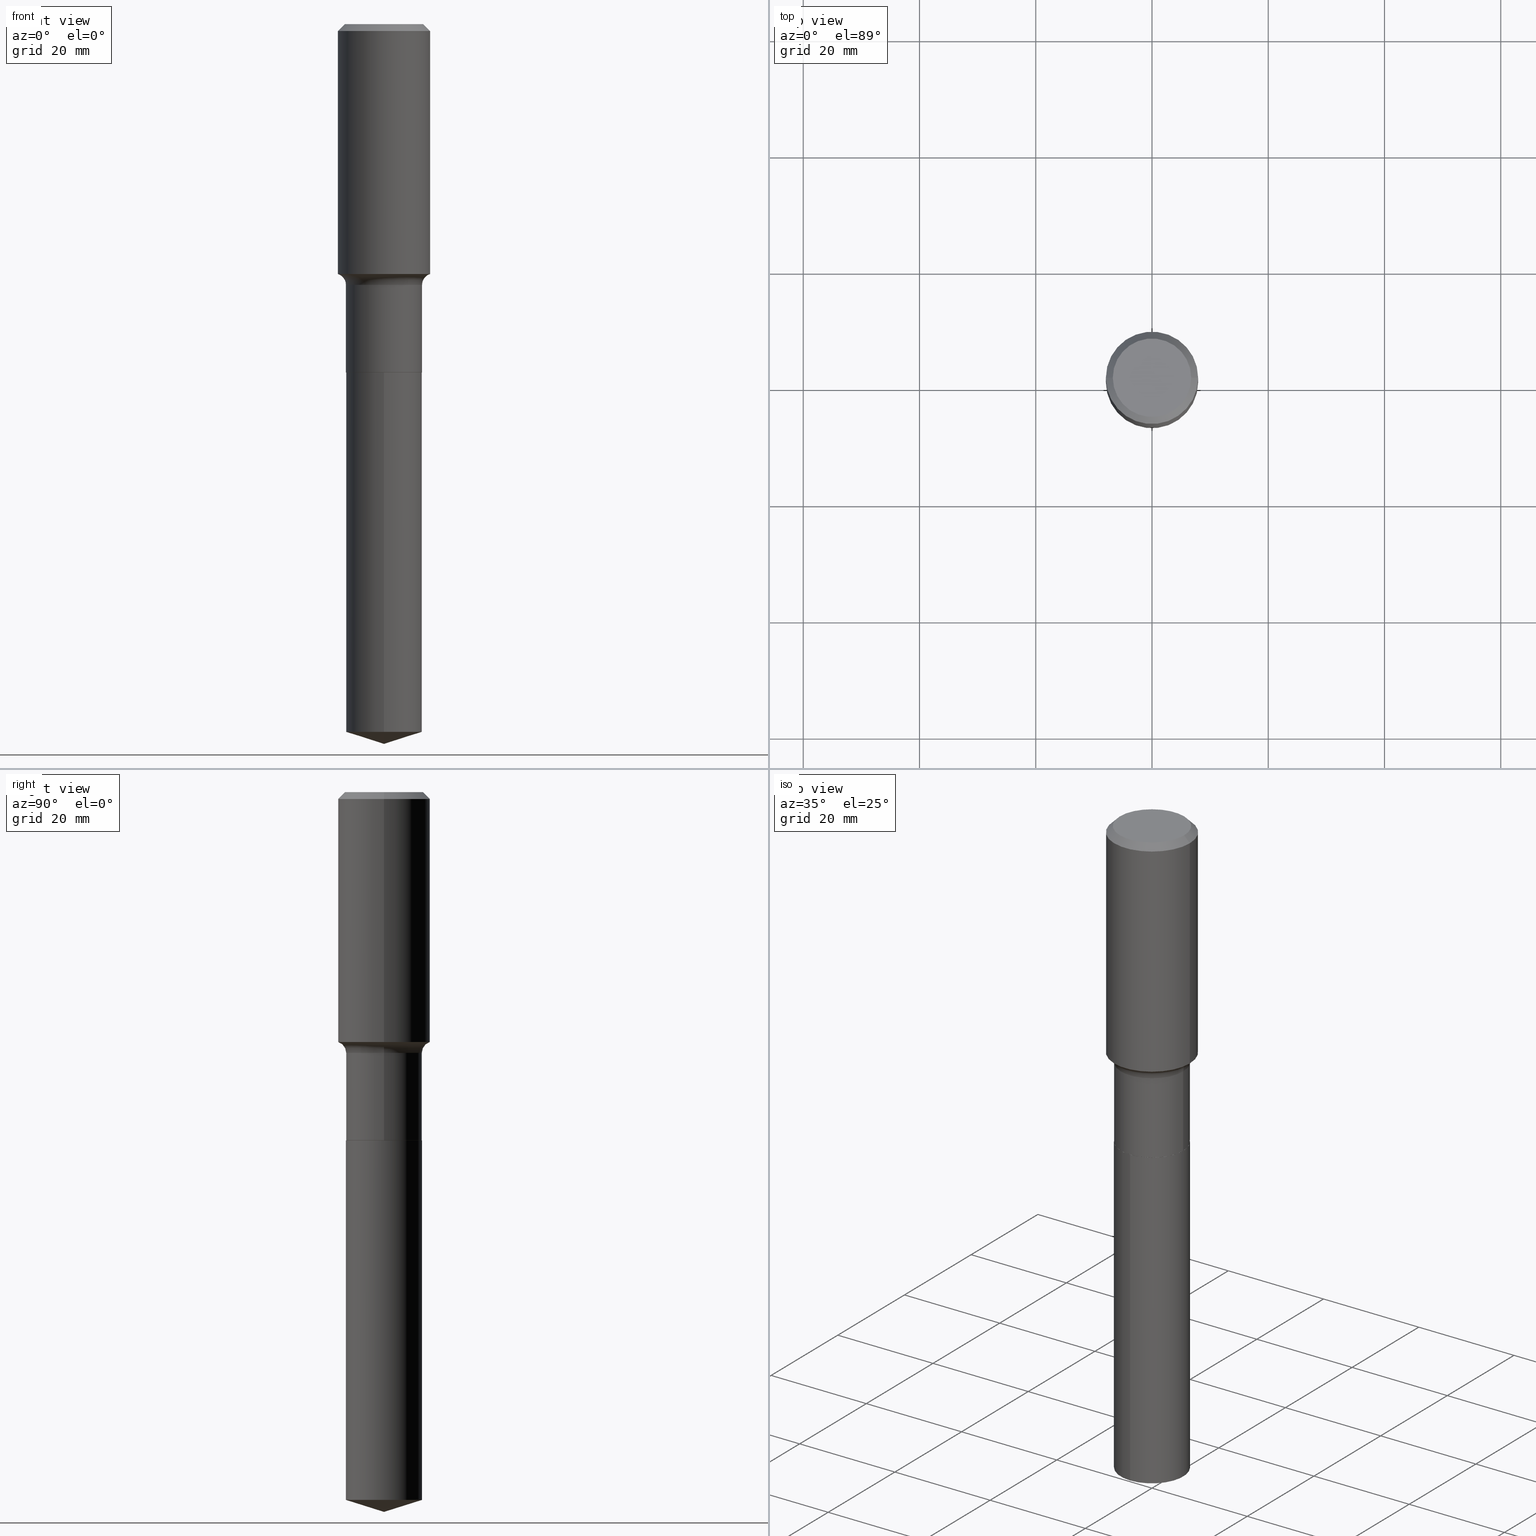
[diagram: canonical four-view strip — front | top / right | iso, engineering-drawing reading convention]
A machine part, canonical four-view strip (front | top / right | iso — engineering-drawing reading convention). The complete STEP part file that produces these views, byte-faithful:
ISO-10303-21;
HEADER;
FILE_DESCRIPTION (( 'STEP AP203' ),
    '1' );
FILE_NAME ('51535.STEP',
    '2024-04-19T12:59:52',
    ( '' ),
    ( '' ),
    'SwSTEP 2.0',
    'SolidWorks 2023',
    '' );
FILE_SCHEMA (( 'CONFIG_CONTROL_DESIGN' ));
ENDSEC;

DATA;
#1 = AXIS2_PLACEMENT_3D ( 'NONE', #195, #346, #59 ) ;
#2 = APPROVAL_ROLE ( '' ) ;
#3 = ORIENTED_EDGE ( 'NONE', *, *, #282, .F. ) ;
#4 = LINE ( 'NONE', #356, #5 ) ;
#5 = VECTOR ( 'NONE', #423, 39.37007874015748143 ) ;
#6 = TOROIDAL_SURFACE ( 'NONE', #295, 0.3357999999999998764, 0.07800000000000002764 ) ;
#7 = DIRECTION ( 'NONE',  ( -2.445468806185136597E-29, 3.491481338843145583E-15, 1.000000000000000000 ) ) ;
#8 = ORIENTED_EDGE ( 'NONE', *, *, #441, .T. ) ;
#9 = LINE ( 'NONE', #250, #444 ) ;
#10 = CARTESIAN_POINT ( 'NONE',  ( 1.831779172789656026E-15, 0.2577999999999917580, -2.359400000000000830 ) ) ;
#11 = CC_DESIGN_DATE_AND_TIME_ASSIGNMENT ( #130, #283, ( #418 ) ) ;
#12 = EDGE_LOOP ( 'NONE', ( #386, #332, #480, #204 ) ) ;
#13 = FACE_OUTER_BOUND ( 'NONE', #105, .T. ) ;
#14 = DIRECTION ( 'NONE',  ( -2.445468806185136597E-29, 3.491481338843145583E-15, 1.000000000000000000 ) ) ;
#15 = PERSON_AND_ORGANIZATION ( #376, #118 ) ;
#16 = ORIENTED_EDGE ( 'NONE', *, *, #263, .T. ) ;
#17 = DIRECTION ( 'NONE',  ( -6.982962677686265133E-15, -1.000000000000000000, 3.500519750498744664E-15 ) ) ;
#18 = VECTOR ( 'NONE', #50, 39.37007874015748143 ) ;
#19 = FACE_OUTER_BOUND ( 'NONE', #361, .T. ) ;
#20 = VERTEX_POINT ( 'NONE', #185 ) ;
#21 = APPLICATION_PROTOCOL_DEFINITION ( 'international standard', 'config_control_design', 1994, #291 ) ;
#22 = CARTESIAN_POINT ( 'NONE',  ( 5.769839101313211634E-29, -8.237801070866517629E-15, -2.359399999999999942 ) ) ;
#23 = ORIENTED_EDGE ( 'NONE', *, *, #406, .F. ) ;
#24 = CARTESIAN_POINT ( 'NONE',  ( 0.000000000000000000, 0.000000000000000000, 0.000000000000000000 ) ) ;
#25 = EDGE_CURVE ( 'NONE', #242, #209, #348, .T. ) ;
#26 = EDGE_LOOP ( 'NONE', ( #440, #138, #172, #382 ) ) ;
#27 = AXIS2_PLACEMENT_3D ( 'NONE', #278, #425, #162 ) ;
#28 = AXIS2_PLACEMENT_3D ( 'NONE', #100, #120, #163 ) ;
#29 = AXIS2_PLACEMENT_3D ( 'NONE', #235, #45, #318 ) ;
#30 = CARTESIAN_POINT ( 'NONE',  ( 0.000000000000000000, 0.000000000000000000, 0.000000000000000000 ) ) ;
#31 = DIRECTION ( 'NONE',  ( -2.445468806185136597E-29, 3.491481338843145583E-15, 1.000000000000000000 ) ) ;
#32 = ADVANCED_FACE ( 'NONE', ( #450 ), #443, .T. ) ;
#33 = CARTESIAN_POINT ( 'NONE',  ( -0.3125000000000002220, -3.687354639751988645E-15, -1.692061367556892515 ) ) ;
#34 = CC_DESIGN_PERSON_AND_ORGANIZATION_ASSIGNMENT ( #246, #385, ( #142 ) ) ;
#35 = CIRCLE ( 'NONE', #1, 0.2577999999999999736 ) ;
#36 = APPROVAL_PERSON_ORGANIZATION ( #123, #68, #165 ) ;
#37 = DIRECTION ( 'NONE',  ( 6.776566513254250249E-15, 0.9537169507482278208, 0.3007057995042703435 ) ) ;
#38 = EDGE_CURVE ( 'NONE', #75, #402, #407, .T. ) ;
#39 = EDGE_CURVE ( 'NONE', #242, #397, #188, .T. ) ;
#40 = DIRECTION ( 'NONE',  ( -2.445468806185136597E-29, 3.491481338843145583E-15, 1.000000000000000000 ) ) ;
#41 = AXIS2_PLACEMENT_3D ( 'NONE', #322, #133, #351 ) ;
#42 = CALENDAR_DATE ( 2024, 19, 4 ) ;
#43 = VERTEX_POINT ( 'NONE', #148 ) ;
#44 = CARTESIAN_POINT ( 'NONE',  ( 1.146313502899290312E-30, -1.636631877582735524E-16, -0.04687500000000031225 ) ) ;
#45 = DIRECTION ( 'NONE',  ( -2.445468806185136597E-29, 3.491481338843145583E-15, 1.000000000000000000 ) ) ;
#46 = CARTESIAN_POINT ( 'NONE',  ( -1.800207778307402021E-15, -0.2578000000000167380, -4.793715972226996413 ) ) ;
#47 = PERSON_AND_ORGANIZATION ( #376, #118 ) ;
#48 = ORIENTED_EDGE ( 'NONE', *, *, #405, .F. ) ;
#49 = AXIS2_PLACEMENT_3D ( 'NONE', #389, #238, #314 ) ;
#50 = DIRECTION ( 'NONE',  ( 0.7071067811865450192, -7.319954787623246579E-15, -0.7071067811865500152 ) ) ;
#51 = APPROVAL ( #366, 'UNSPECIFIED' ) ;
#52 = DIRECTION ( 'NONE',  ( 7.105427357601001859E-15, 1.000000000000000000, -3.491481338843145583E-15 ) ) ;
#53 = ORIENTED_EDGE ( 'NONE', *, *, #329, .F. ) ;
#54 = DIRECTION ( 'NONE',  ( 1.000000000000000000, -6.982962677686255667E-15, 0.000000000000000000 ) ) ;
#55 = DIRECTION ( 'NONE',  ( 0.7071067811866199593, -2.468850131083015945E-15, 0.7071067811864750752 ) ) ;
#56 = APPROVAL_DATE_TIME ( #394, #189 ) ;
#57 = VERTEX_POINT ( 'NONE', #69 ) ;
#58 = DIRECTION ( 'NONE',  ( -6.982962677686266711E-15, -1.000000000000000000, 3.491481338843145583E-15 ) ) ;
#59 = DIRECTION ( 'NONE',  ( -6.982962677686265922E-15, -1.000000000000000000, 3.179031800229941890E-15 ) ) ;
#60 = VERTEX_POINT ( 'NONE', #33 ) ;
#61 = CARTESIAN_POINT ( 'NONE',  ( 1.146313502899290312E-30, -1.636631877582735524E-16, -0.04687500000000031225 ) ) ;
#62 = VECTOR ( 'NONE', #349, 39.37007874015748143 ) ;
#63 = CONICAL_SURFACE ( 'NONE', #225, 0.2572999999999999732, 0.7853981633975507526 ) ;
#64 = CARTESIAN_POINT ( 'NONE',  ( 0.3125000000000000000, -2.345839024535231998E-15, -0.04687500000000031225 ) ) ;
#65 = ORIENTED_EDGE ( 'NONE', *, *, #245, .T. ) ;
#66 = DIRECTION ( 'NONE',  ( -2.445468806185136597E-29, 3.491481338843145583E-15, 1.000000000000000000 ) ) ;
#67 = ORIENTED_EDGE ( 'NONE', *, *, #214, .T. ) ;
#68 = APPROVAL ( #436, 'UNSPECIFIED' ) ;
#69 = CARTESIAN_POINT ( 'NONE',  ( -1.800207778307461580E-15, -0.2578000000000081893, -2.359399999999999054 ) ) ;
#70 = EDGE_CURVE ( 'NONE', #43, #290, #371, .T. ) ;
#71 = CIRCLE ( 'NONE', #154, 0.2577999999999999736 ) ;
#72 =( GEOMETRIC_REPRESENTATION_CONTEXT ( 3 ) GLOBAL_UNCERTAINTY_ASSIGNED_CONTEXT ( ( #342 ) ) GLOBAL_UNIT_ASSIGNED_CONTEXT ( ( #313, #392, #124 ) ) REPRESENTATION_CONTEXT ( 'NONE', 'WORKASPACE' ) );
#73 = CYLINDRICAL_SURFACE ( 'NONE', #191, 0.3125000000000000555 ) ;
#74 = DIRECTION ( 'NONE',  ( -0.7071067811866199593, 7.493145998870616062E-15, 0.7071067811864750752 ) ) ;
#75 = VERTEX_POINT ( 'NONE', #78 ) ;
#76 = AXIS2_PLACEMENT_3D ( 'NONE', #336, #222, #301 ) ;
#77 = AXIS2_PLACEMENT_3D ( 'NONE', #255, #171, #476 ) ;
#78 = CARTESIAN_POINT ( 'NONE',  ( 0.3125000000000002220, -8.089976525779262440E-15, -1.692061367556892515 ) ) ;
#79 = CARTESIAN_POINT ( 'NONE',  ( 1.172252464947418916E-28, -1.673768286122179776E-14, -4.793715972226997302 ) ) ;
#80 = ORIENTED_EDGE ( 'NONE', *, *, #261, .F. ) ;
#81 = EDGE_LOOP ( 'NONE', ( #297, #102, #253, #469 ) ) ;
#82 = APPROVAL_PERSON_ORGANIZATION ( #15, #189, #2 ) ;
#83 = EDGE_LOOP ( 'NONE', ( #96, #477, #317, #257 ) ) ;
#84 = APPROVAL_STATUS ( 'not_yet_approved' ) ;
#85 = EDGE_LOOP ( 'NONE', ( #294, #92, #249, #288 ) ) ;
#86 = ADVANCED_BREP_SHAPE_REPRESENTATION ( '51535', ( #364, #193, #41 ), #72 ) ;
#87 = CARTESIAN_POINT ( 'NONE',  ( 5.768616366910118833E-29, -8.236055330197096914E-15, -2.358900000000000219 ) ) ;
#88 = CARTESIAN_POINT ( 'NONE',  ( 1.172252464947418916E-28, -1.673768286122179776E-14, -4.793715972226997302 ) ) ;
#89 = EDGE_CURVE ( 'NONE', #350, #403, #303, .T. ) ;
#90 = DIRECTION ( 'NONE',  ( 6.982962677686265922E-15, 1.000000000000000000, -3.491692075856237679E-15 ) ) ;
#91 = SHAPE_DEFINITION_REPRESENTATION ( #121, #86 ) ;
#92 = ORIENTED_EDGE ( 'NONE', *, *, #25, .T. ) ;
#93 = AXIS2_PLACEMENT_3D ( 'NONE', #398, #327, #17 ) ;
#94 = PLANE ( 'NONE',  #456 ) ;
#95 = COORDINATED_UNIVERSAL_TIME_OFFSET ( 5, 0, .BEHIND. ) ;
#96 = ORIENTED_EDGE ( 'NONE', *, *, #147, .F. ) ;
#97 = MECHANICAL_CONTEXT ( 'NONE', #194, 'mechanical' ) ;
#98 = DIRECTION ( 'NONE',  ( -2.445468806185136597E-29, 3.491481338843145583E-15, 1.000000000000000000 ) ) ;
#99 = ORIENTED_EDGE ( 'NONE', *, *, #70, .T. ) ;
#100 = CARTESIAN_POINT ( 'NONE',  ( 1.146313502899290312E-30, -1.636631877582735524E-16, -0.04687500000000031225 ) ) ;
#101 = CARTESIAN_POINT ( 'NONE',  ( 5.769839101313211634E-29, -8.237801070866517629E-15, -2.359399999999999942 ) ) ;
#102 = ORIENTED_EDGE ( 'NONE', *, *, #39, .T. ) ;
#103 = CIRCLE ( 'NONE', #377, 0.3125000000000001665 ) ;
#104 = DIRECTION ( 'NONE',  ( 1.000000000000000000, -6.982962677686265922E-15, 4.883557194083112340E-29 ) ) ;
#105 = EDGE_LOOP ( 'NONE', ( #127, #358, #284 ) ) ;
#106 = CARTESIAN_POINT ( 'NONE',  ( -0.2572999999999999732, -6.409574611755779252E-15, -2.359399999999999942 ) ) ;
#107 = DIRECTION ( 'NONE',  ( 1.000000000000000000, -6.982962677686265922E-15, 4.883557194083112340E-29 ) ) ;
#108 = TOROIDAL_SURFACE ( 'NONE', #449, 0.3357999999999998764, 0.07800000000000002764 ) ;
#109 = CIRCLE ( 'NONE', #77, 0.2577999999999999736 ) ;
#110 = DIRECTION ( 'NONE',  ( -6.982962677686265133E-15, -1.000000000000000000, 3.500519750498744664E-15 ) ) ;
#111 = FACE_OUTER_BOUND ( 'NONE', #247, .T. ) ;
#112 = DIRECTION ( 'NONE',  ( -2.445321649315413865E-29, 3.491692075856237679E-15, 1.000000000000000000 ) ) ;
#113 = AXIS2_PLACEMENT_3D ( 'NONE', #24, #137, #331 ) ;
#114 = CARTESIAN_POINT ( 'NONE',  ( 0.2577999999999999181, -7.967909563373935033E-15, -1.766499999999999959 ) ) ;
#115 = ADVANCED_FACE ( 'NONE', ( #492 ), #150, .T. ) ;
#116 = ORIENTED_EDGE ( 'NONE', *, *, #245, .F. ) ;
#117 = CIRCLE ( 'NONE', #400, 0.07800000000000002764 ) ;
#118 = ORGANIZATION ( 'UNSPECIFIED', 'UNSPECIFIED', '' ) ;
#119 = COORDINATED_UNIVERSAL_TIME_OFFSET ( 5, 0, .BEHIND. ) ;
#120 = DIRECTION ( 'NONE',  ( -2.445468806185136597E-29, 3.491481338843145583E-15, 1.000000000000000000 ) ) ;
#121 = PRODUCT_DEFINITION_SHAPE ( 'NONE', 'NONE',  #418 ) ;
#122 = DIRECTION ( 'NONE',  ( 1.000000000000000000, -6.982962677686266711E-15, 0.000000000000000000 ) ) ;
#123 = PERSON_AND_ORGANIZATION ( #376, #118 ) ;
#124 =( NAMED_UNIT ( * ) SI_UNIT ( $, .STERADIAN. ) SOLID_ANGLE_UNIT ( ) );
#125 = ADVANCED_FACE ( 'NONE', ( #486 ), #414, .T. ) ;
#126 = CARTESIAN_POINT ( 'NONE',  ( 4.137883292511343296E-29, -5.907800689002302515E-15, -1.692061367556892515 ) ) ;
#127 = ORIENTED_EDGE ( 'NONE', *, *, #89, .F. ) ;
#128 = FACE_OUTER_BOUND ( 'NONE', #158, .T. ) ;
#129 = DIRECTION ( 'NONE',  ( 2.438088387897960049E-29, -3.491481338843145188E-15, -1.000000000000000000 ) ) ;
#130 = DATE_AND_TIME ( #42, #324 ) ;
#131 = ORIENTED_EDGE ( 'NONE', *, *, #445, .T. ) ;
#132 = AXIS2_PLACEMENT_3D ( 'NONE', #87, #243, #462 ) ;
#133 = DIRECTION ( 'NONE',  ( 0.000000000000000000, 0.000000000000000000, 1.000000000000000000 ) ) ;
#134 = DIRECTION ( 'NONE',  ( -6.982962677686265922E-15, -1.000000000000000000, 4.238709066973255853E-15 ) ) ;
#135 = DATE_AND_TIME ( #426, #463 ) ;
#136 = ORIENTED_EDGE ( 'NONE', *, *, #405, .T. ) ;
#137 = DIRECTION ( 'NONE',  ( -2.445468806185136597E-29, 3.491481338843145583E-15, 1.000000000000000000 ) ) ;
#138 = ORIENTED_EDGE ( 'NONE', *, *, #227, .T. ) ;
#139 = CARTESIAN_POINT ( 'NONE',  ( -1.800207778307461580E-15, -0.2578000000000081893, -2.359399999999999054 ) ) ;
#140 = ORIENTED_EDGE ( 'NONE', *, *, #344, .F. ) ;
#141 = CLOSED_SHELL ( 'NONE', ( #160, #32, #481, #125, #279 ) ) ;
#142 = PRODUCT_DEFINITION_FORMATION_WITH_SPECIFIED_SOURCE ( 'ANY', '', #272, .NOT_KNOWN. ) ;
#143 = DIRECTION ( 'NONE',  ( -2.445321649315413865E-29, 3.491692075856237679E-15, 1.000000000000000000 ) ) ;
#144 = CC_DESIGN_PERSON_AND_ORGANIZATION_ASSIGNMENT ( #475, #211, ( #272 ) ) ;
#145 = ORIENTED_EDGE ( 'NONE', *, *, #344, .T. ) ;
#146 = ADVANCED_FACE ( 'NONE', ( #111 ), #226, .T. ) ;
#147 = EDGE_CURVE ( 'NONE', #60, #176, #264, .T. ) ;
#148 = CARTESIAN_POINT ( 'NONE',  ( 0.2577999999999999736, -1.003626310850461608E-14, -2.358900000000000219 ) ) ;
#149 = DIRECTION ( 'NONE',  ( -2.445468806185136877E-29, 3.491481338843145188E-15, 1.000000000000000000 ) ) ;
#150 = CYLINDRICAL_SURFACE ( 'NONE', #208, 0.2577999999999999181 ) ;
#151 = CARTESIAN_POINT ( 'NONE',  ( 0.000000000000000000, 0.000000000000000000, 0.000000000000000000 ) ) ;
#152 = ADVANCED_FACE ( 'NONE', ( #343 ), #108, .F. ) ;
#153 = CARTESIAN_POINT ( 'NONE',  ( -1.591006383764330162E-46, 2.271535455632767854E-32, 6.505936120470315685E-18 ) ) ;
#154 = AXIS2_PLACEMENT_3D ( 'NONE', #88, #236, #198 ) ;
#155 = AXIS2_PLACEMENT_3D ( 'NONE', #22, #66, #289 ) ;
#156 = ADVANCED_FACE ( 'NONE', ( #369 ), #73, .T. ) ;
#157 = CALENDAR_DATE ( 2024, 19, 4 ) ;
#158 = EDGE_LOOP ( 'NONE', ( #80, #338, #8, #180 ) ) ;
#159 = CARTESIAN_POINT ( 'NONE',  ( 4.137883292511343296E-29, -5.907800689002302515E-15, -1.692061367556892515 ) ) ;
#160 = ADVANCED_FACE ( 'NONE', ( #182 ), #448, .T. ) ;
#161 = LENGTH_MEASURE_WITH_UNIT ( LENGTH_MEASURE( 0.02539999999999999897 ), #347 );
#162 = DIRECTION ( 'NONE',  ( -1.000000000000000000, 6.982962677686266711E-15, 0.000000000000000000 ) ) ;
#163 = DIRECTION ( 'NONE',  ( 1.000000000000000000, -6.982962677686266711E-15, 0.000000000000000000 ) ) ;
#164 = DIRECTION ( 'NONE',  ( -1.000000000000000000, 7.105427357601001859E-15, 0.000000000000000000 ) ) ;
#165 = APPROVAL_ROLE ( '' ) ;
#166 = ORIENTED_EDGE ( 'NONE', *, *, #70, .F. ) ;
#167 = DIRECTION ( 'NONE',  ( -6.659769872151624989E-15, -0.9537169507482257114, 0.3007057995042770049 ) ) ;
#168 = DIRECTION ( 'NONE',  ( 1.000000000000000000, -6.982962677686265922E-15, 0.000000000000000000 ) ) ;
#169 = PERSON_AND_ORGANIZATION ( #376, #118 ) ;
#170 = ORIENTED_EDGE ( 'NONE', *, *, #457, .F. ) ;
#171 = DIRECTION ( 'NONE',  ( -2.445468806185136597E-29, 3.491481338843145583E-15, 1.000000000000000000 ) ) ;
#172 = ORIENTED_EDGE ( 'NONE', *, *, #406, .T. ) ;
#173 = PERSON_AND_ORGANIZATION ( #376, #118 ) ;
#174 = PRODUCT_RELATED_PRODUCT_CATEGORY ( 'detail', '', ( #272 ) ) ;
#175 = CARTESIAN_POINT ( 'NONE',  ( 1.831779172789655238E-15, 0.2577999999999832648, -4.793715972226999078 ) ) ;
#176 = VERTEX_POINT ( 'NONE', #299 ) ;
#177 = DATE_AND_TIME ( #372, #345 ) ;
#178 = EDGE_CURVE ( 'NONE', #403, #234, #4, .T. ) ;
#179 = DIRECTION ( 'NONE',  ( -2.445468806185136597E-29, 3.491481338843145583E-15, 1.000000000000000000 ) ) ;
#180 = ORIENTED_EDGE ( 'NONE', *, *, #459, .F. ) ;
#181 = AXIS2_PLACEMENT_3D ( 'NONE', #200, #274, #122 ) ;
#182 = FACE_OUTER_BOUND ( 'NONE', #437, .T. ) ;
#183 = DIRECTION ( 'NONE',  ( -6.982962677686265922E-15, -1.000000000000000000, 3.179031800229941890E-15 ) ) ;
#184 = EDGE_CURVE ( 'NONE', #60, #75, #470, .T. ) ;
#185 = CARTESIAN_POINT ( 'NONE',  ( -0.2577999999999999181, -5.370099384842219482E-15, -1.766499999999999959 ) ) ;
#186 = VECTOR ( 'NONE', #55, 39.37007874015748143 ) ;
#187 = DIRECTION ( 'NONE',  ( -2.445321649315413865E-29, 3.491692075856237679E-15, 1.000000000000000000 ) ) ;
#188 = LINE ( 'NONE', #106, #300 ) ;
#189 = APPROVAL ( #84, 'UNSPECIFIED' ) ;
#190 = ADVANCED_FACE ( 'NONE', ( #471 ), #454, .T. ) ;
#191 = AXIS2_PLACEMENT_3D ( 'NONE', #30, #40, #337 ) ;
#192 = CC_DESIGN_SECURITY_CLASSIFICATION ( #420, ( #142 ) ) ;
#193 = MANIFOLD_SOLID_BREP ( 'Body-Move/Copy2[2]', #305 ) ;
#194 = APPLICATION_CONTEXT ( 'configuration controlled 3d designs of mechanical parts and assemblies' ) ;
#195 = CARTESIAN_POINT ( 'NONE',  ( 5.769839101313211634E-29, -8.237801070866517629E-15, -2.359399999999999942 ) ) ;
#196 = PERSON_AND_ORGANIZATION_ROLE ( 'design_supplier' ) ;
#197 = CARTESIAN_POINT ( 'NONE',  ( -0.3125000000000000000, 2.018512649018685091E-15, -0.04687500000000031225 ) ) ;
#198 = DIRECTION ( 'NONE',  ( -6.982962677686265922E-15, -1.000000000000000000, 4.238709066973255853E-15 ) ) ;
#199 = AXIS2_PLACEMENT_3D ( 'NONE', #399, #58, #54 ) ;
#200 = CARTESIAN_POINT ( 'NONE',  ( 5.769839101313211634E-29, -8.237801070866517629E-15, -2.359399999999999942 ) ) ;
#201 = EDGE_LOOP ( 'NONE', ( #131, #67, #170, #166 ) ) ;
#202 = CARTESIAN_POINT ( 'NONE',  ( 4.319920646126043085E-29, -6.167701785066416655E-15, -1.766499999999999959 ) ) ;
#203 = COORDINATED_UNIVERSAL_TIME_OFFSET ( 5, 0, .BEHIND. ) ;
#204 = ORIENTED_EDGE ( 'NONE', *, *, #38, .F. ) ;
#205 = LINE ( 'NONE', #387, #18 ) ;
#206 = ADVANCED_FACE ( 'NONE', ( #352 ), #483, .T. ) ;
#207 = CARTESIAN_POINT ( 'NONE',  ( -0.2656250000000000000, 1.936681055139549843E-15, 6.505936120457058354E-18 ) ) ;
#208 = AXIS2_PLACEMENT_3D ( 'NONE', #341, #490, #221 ) ;
#209 = VERTEX_POINT ( 'NONE', #244 ) ;
#210 = CIRCLE ( 'NONE', #28, 0.3125000000000000000 ) ;
#211 = PERSON_AND_ORGANIZATION_ROLE ( 'design_owner' ) ;
#212 = CARTESIAN_POINT ( 'NONE',  ( -0.2578000000000000291, -5.370099384842219482E-15, -2.358900000000000219 ) ) ;
#213 = EDGE_LOOP ( 'NONE', ( #474, #391 ) ) ;
#214 = EDGE_CURVE ( 'NONE', #397, #20, #431, .T. ) ;
#215 = APPROVAL_ROLE ( '' ) ;
#216 = CARTESIAN_POINT ( 'NONE',  ( -1.591006383764330162E-46, 2.271535455632767854E-32, 6.505936120470315685E-18 ) ) ;
#217 = VERTEX_POINT ( 'NONE', #46 ) ;
#218 = DIRECTION ( 'NONE',  ( -6.982962677686265922E-15, -1.000000000000000000, 3.179031800229941890E-15 ) ) ;
#219 = AXIS2_PLACEMENT_3D ( 'NONE', #44, #98, #396 ) ;
#220 = VECTOR ( 'NONE', #422, 39.37007874015748143 ) ;
#221 = DIRECTION ( 'NONE',  ( 1.000000000000000000, -6.982962677686267499E-15, 4.876176775795936353E-29 ) ) ;
#222 = DIRECTION ( 'NONE',  ( -2.445468806185136597E-29, 3.491481338843145583E-15, 1.000000000000000000 ) ) ;
#223 = CARTESIAN_POINT ( 'NONE',  ( 5.769839101313211634E-29, -8.237801070866517629E-15, -2.359399999999999942 ) ) ;
#224 = CIRCLE ( 'NONE', #259, 0.2577999999999999736 ) ;
#225 = AXIS2_PLACEMENT_3D ( 'NONE', #101, #328, #478 ) ;
#226 = CYLINDRICAL_SURFACE ( 'NONE', #415, 0.2577999999999999181 ) ;
#227 = EDGE_CURVE ( 'NONE', #403, #217, #71, .T. ) ;
#228 = CARTESIAN_POINT ( 'NONE',  ( -0.2572999999999999732, -6.406925384581668051E-15, -2.359399999999999942 ) ) ;
#229 = VERTEX_POINT ( 'NONE', #434 ) ;
#230 = AXIS2_PLACEMENT_3D ( 'NONE', #258, #410, #183 ) ;
#231 = CIRCLE ( 'NONE', #266, 0.2656250000000000000 ) ;
#232 = ORIENTED_EDGE ( 'NONE', *, *, #261, .T. ) ;
#233 = APPROVAL_DATE_TIME ( #316, #68 ) ;
#234 = VERTEX_POINT ( 'NONE', #10 ) ;
#235 = CARTESIAN_POINT ( 'NONE',  ( 4.319920646126043085E-29, -6.167701785066416655E-15, -1.766499999999999959 ) ) ;
#236 = DIRECTION ( 'NONE',  ( -2.445321649315413865E-29, 3.491692075856237679E-15, 1.000000000000000000 ) ) ;
#237 = ORIENTED_EDGE ( 'NONE', *, *, #329, .T. ) ;
#238 = DIRECTION ( 'NONE',  ( -2.445321649315413865E-29, 3.491692075856237679E-15, 1.000000000000000000 ) ) ;
#239 = CIRCLE ( 'NONE', #219, 0.3125000000000000000 ) ;
#240 = CIRCLE ( 'NONE', #199, 0.07800000000000002764 ) ;
#241 = CC_DESIGN_APPROVAL ( #68, ( #420 ) ) ;
#242 = VERTEX_POINT ( 'NONE', #228 ) ;
#243 = DIRECTION ( 'NONE',  ( -2.445468806185136597E-29, 3.491481338843145583E-15, 1.000000000000000000 ) ) ;
#244 = CARTESIAN_POINT ( 'NONE',  ( 0.2572999999999999732, -1.003451736783519379E-14, -2.359399999999999942 ) ) ;
#245 = EDGE_CURVE ( 'NONE', #217, #403, #224, .T. ) ;
#246 = PERSON_AND_ORGANIZATION ( #376, #118 ) ;
#247 = EDGE_LOOP ( 'NONE', ( #484, #427, #99, #53 ) ) ;
#248 = CARTESIAN_POINT ( 'NONE',  ( -0.3357999999999998764, -3.781699278384001110E-15, -1.766499999999999959 ) ) ;
#249 = ORIENTED_EDGE ( 'NONE', *, *, #315, .T. ) ;
#250 = CARTESIAN_POINT ( 'NONE',  ( 1.192094304041264091E-28, -1.702199886979915711E-14, -4.875000000000000000 ) ) ;
#251 = CARTESIAN_POINT ( 'NONE',  ( 4.319920646126043085E-29, -6.167701785066416655E-15, -1.766499999999999959 ) ) ;
#252 = AXIS2_PLACEMENT_3D ( 'NONE', #202, #14, #168 ) ;
#253 = ORIENTED_EDGE ( 'NONE', *, *, #445, .F. ) ;
#254 = CC_DESIGN_APPROVAL ( #51, ( #418 ) ) ;
#255 = CARTESIAN_POINT ( 'NONE',  ( 5.768616366910118833E-29, -8.236055330197096914E-15, -2.358900000000000219 ) ) ;
#256 = ORIENTED_EDGE ( 'NONE', *, *, #479, .F. ) ;
#257 = ORIENTED_EDGE ( 'NONE', *, *, #335, .F. ) ;
#258 = CARTESIAN_POINT ( 'NONE',  ( 5.769839101313211634E-29, -8.237801070866517629E-15, -2.359399999999999942 ) ) ;
#259 = AXIS2_PLACEMENT_3D ( 'NONE', #79, #267, #134 ) ;
#260 = DIRECTION ( 'NONE',  ( -2.445468806185136877E-29, 3.491481338843145188E-15, 1.000000000000000000 ) ) ;
#261 = EDGE_CURVE ( 'NONE', #229, #326, #339, .T. ) ;
#262 = DIRECTION ( 'NONE',  ( 1.000000000000000000, -6.982962677686267499E-15, 4.876176775795936353E-29 ) ) ;
#263 = EDGE_CURVE ( 'NONE', #234, #57, #265, .T. ) ;
#264 = LINE ( 'NONE', #378, #269 ) ;
#265 = CIRCLE ( 'NONE', #49, 0.2577999999999999736 ) ;
#266 = AXIS2_PLACEMENT_3D ( 'NONE', #216, #179, #482 ) ;
#267 = DIRECTION ( 'NONE',  ( -2.445321649315413865E-29, 3.491692075856237679E-15, 1.000000000000000000 ) ) ;
#268 = ORIENTED_EDGE ( 'NONE', *, *, #282, .T. ) ;
#269 = VECTOR ( 'NONE', #149, 39.37007874015748143 ) ;
#270 = CONICAL_SURFACE ( 'NONE', #306, 0.3125000000000000000, 0.7853981633974447263 ) ;
#271 = CALENDAR_DATE ( 2024, 19, 4 ) ;
#272 = PRODUCT ( '51535', '51535', '', ( #97 ) ) ;
#273 = DIRECTION ( 'NONE',  ( 2.445468806185136597E-29, -3.491481338843145583E-15, -1.000000000000000000 ) ) ;
#274 = DIRECTION ( 'NONE',  ( -2.445468806185136597E-29, 3.491481338843145583E-15, 1.000000000000000000 ) ) ;
#275 = CC_DESIGN_DATE_AND_TIME_ASSIGNMENT ( #135, #287, ( #420 ) ) ;
#276 = CARTESIAN_POINT ( 'NONE',  ( 5.769839101313211634E-29, -8.237801070866517629E-15, -2.359399999999999942 ) ) ;
#277 = DIRECTION ( 'NONE',  ( -1.000000000000000000, 6.982962677686266711E-15, 0.000000000000000000 ) ) ;
#278 = CARTESIAN_POINT ( 'NONE',  ( 1.146313502899290312E-30, -1.636631877582735524E-16, -0.04687500000000031225 ) ) ;
#279 = ADVANCED_FACE ( 'NONE', ( #465 ), #94, .F. ) ;
#280 = CIRCLE ( 'NONE', #155, 0.2572999999999999732 ) ;
#281 = LOCAL_TIME ( 8, 59, 52.00000000000000000, #203 ) ;
#282 = EDGE_CURVE ( 'NONE', #60, #20, #117, .T. ) ;
#283 = DATE_TIME_ROLE ( 'creation_date' ) ;
#284 = ORIENTED_EDGE ( 'NONE', *, *, #227, .F. ) ;
#285 = LINE ( 'NONE', #197, #220 ) ;
#286 = LINE ( 'NONE', #417, #186 ) ;
#287 = DATE_TIME_ROLE ( 'classification_date' ) ;
#288 = ORIENTED_EDGE ( 'NONE', *, *, #424, .F. ) ;
#289 = DIRECTION ( 'NONE',  ( 1.000000000000000000, -6.982962677686266711E-15, 0.000000000000000000 ) ) ;
#290 = VERTEX_POINT ( 'NONE', #114 ) ;
#291 = APPLICATION_CONTEXT ( 'configuration controlled 3d designs of mechanical parts and assemblies' ) ;
#292 = DIRECTION ( 'NONE',  ( 1.000000000000000000, -6.982962677686265133E-15, 0.000000000000000000 ) ) ;
#293 = AXIS2_PLACEMENT_3D ( 'NONE', #467, #129, #380 ) ;
#294 = ORIENTED_EDGE ( 'NONE', *, *, #39, .F. ) ;
#295 = AXIS2_PLACEMENT_3D ( 'NONE', #251, #442, #104 ) ;
#296 = DIMENSIONAL_EXPONENTS ( 1.000000000000000000, 0.000000000000000000, 0.000000000000000000, 0.000000000000000000, 0.000000000000000000, 0.000000000000000000, 0.000000000000000000 ) ;
#297 = ORIENTED_EDGE ( 'NONE', *, *, #374, .T. ) ;
#298 = ORIENTED_EDGE ( 'NONE', *, *, #472, .F. ) ;
#299 = CARTESIAN_POINT ( 'NONE',  ( -0.3125000000000000000, -8.152858891299743119E-16, -0.04687500000000031225 ) ) ;
#300 = VECTOR ( 'NONE', #74, 39.37007874015748143 ) ;
#301 = DIRECTION ( 'NONE',  ( 1.000000000000000000, -6.982962677686266711E-15, 0.000000000000000000 ) ) ;
#302 = ADVANCED_FACE ( 'NONE', ( #464 ), #319, .F. ) ;
#303 = LINE ( 'NONE', #447, #408 ) ;
#304 = DIRECTION ( 'NONE',  ( 1.000000000000000000, -6.982962677686268288E-15, 4.876286914311434227E-29 ) ) ;
#305 = CLOSED_SHELL ( 'NONE', ( #190, #491, #156, #412, #115, #146, #152, #381, #206, #302, #468, #404 ) ) ;
#306 = AXIS2_PLACEMENT_3D ( 'NONE', #61, #273, #277 ) ;
#307 = EDGE_LOOP ( 'NONE', ( #256, #310, #116 ) ) ;
#308 = DESIGN_CONTEXT ( 'detailed design', #291, 'design' ) ;
#309 = PERSON_AND_ORGANIZATION ( #376, #118 ) ;
#310 = ORIENTED_EDGE ( 'NONE', *, *, #89, .T. ) ;
#311 = VECTOR ( 'NONE', #260, 39.37007874015748143 ) ;
#312 = DIRECTION ( 'NONE',  ( -2.445468806185136597E-29, 3.491481338843145583E-15, 1.000000000000000000 ) ) ;
#313 =( CONVERSION_BASED_UNIT ( 'INCH', #161 ) LENGTH_UNIT ( ) NAMED_UNIT ( #296 ) );
#314 = DIRECTION ( 'NONE',  ( -6.982962677686265922E-15, -1.000000000000000000, 3.179031800229941890E-15 ) ) ;
#315 = EDGE_CURVE ( 'NONE', #209, #43, #286, .T. ) ;
#316 = DATE_AND_TIME ( #271, #409 ) ;
#317 = ORIENTED_EDGE ( 'NONE', *, *, #38, .T. ) ;
#318 = DIRECTION ( 'NONE',  ( 1.000000000000000000, -6.982962677686265922E-15, 0.000000000000000000 ) ) ;
#319 = PLANE ( 'NONE',  #293 ) ;
#320 = PERSON_AND_ORGANIZATION_ROLE ( 'creator' ) ;
#321 = EDGE_LOOP ( 'NONE', ( #145, #16 ) ) ;
#322 = CARTESIAN_POINT ( 'NONE',  ( 0.000000000000000000, 0.000000000000000000, 0.000000000000000000 ) ) ;
#323 = DIRECTION ( 'NONE',  ( -2.445468806185136597E-29, 3.491481338843145583E-15, 1.000000000000000000 ) ) ;
#324 = LOCAL_TIME ( 8, 59, 52.00000000000000000, #95 ) ;
#325 = SECURITY_CLASSIFICATION_LEVEL ( 'unclassified' ) ;
#326 = VERTEX_POINT ( 'NONE', #207 ) ;
#327 = DIRECTION ( 'NONE',  ( -2.445321649315413865E-29, 3.491692075856237679E-15, 1.000000000000000000 ) ) ;
#328 = DIRECTION ( 'NONE',  ( -2.445468806185136597E-29, 3.491481338843145583E-15, 1.000000000000000000 ) ) ;
#329 = EDGE_CURVE ( 'NONE', #20, #290, #461, .T. ) ;
#330 = ORIENTED_EDGE ( 'NONE', *, *, #178, .T. ) ;
#331 = DIRECTION ( 'NONE',  ( 1.000000000000000000, -6.982962677686266711E-15, 4.876176775795936353E-29 ) ) ;
#332 = ORIENTED_EDGE ( 'NONE', *, *, #147, .T. ) ;
#333 = LINE ( 'NONE', #139, #340 ) ;
#334 = ORIENTED_EDGE ( 'NONE', *, *, #435, .T. ) ;
#335 = EDGE_CURVE ( 'NONE', #176, #402, #239, .T. ) ;
#336 = CARTESIAN_POINT ( 'NONE',  ( 5.769839101313211634E-29, -8.237801070866517629E-15, -2.359399999999999942 ) ) ;
#337 = DIRECTION ( 'NONE',  ( 1.000000000000000000, -6.982962677686266711E-15, 4.876176775795936353E-29 ) ) ;
#338 = ORIENTED_EDGE ( 'NONE', *, *, #472, .T. ) ;
#339 = CIRCLE ( 'NONE', #429, 0.2656250000000000000 ) ;
#340 = VECTOR ( 'NONE', #143, 39.37007874015748143 ) ;
#341 = CARTESIAN_POINT ( 'NONE',  ( 0.000000000000000000, 0.000000000000000000, 0.000000000000000000 ) ) ;
#342 = UNCERTAINTY_MEASURE_WITH_UNIT (LENGTH_MEASURE( 1.000000000000000082E-05 ), #313, 'distance_accuracy_value', 'NONE');
#343 = FACE_OUTER_BOUND ( 'NONE', #419, .T. ) ;
#344 = EDGE_CURVE ( 'NONE', #57, #234, #35, .T. ) ;
#345 = LOCAL_TIME ( 8, 59, 52.00000000000000000, #362 ) ;
#346 = DIRECTION ( 'NONE',  ( -2.445321649315413865E-29, 3.491692075856237679E-15, 1.000000000000000000 ) ) ;
#347 =( LENGTH_UNIT ( ) NAMED_UNIT ( * ) SI_UNIT ( $, .METRE. ) );
#348 = CIRCLE ( 'NONE', #76, 0.2572999999999999732 ) ;
#349 = DIRECTION ( 'NONE',  ( -2.445468806185136877E-29, 3.491481338843145188E-15, 1.000000000000000000 ) ) ;
#350 = VERTEX_POINT ( 'NONE', #455 ) ;
#351 = DIRECTION ( 'NONE',  ( 1.000000000000000000, 0.000000000000000000, 0.000000000000000000 ) ) ;
#352 = FACE_OUTER_BOUND ( 'NONE', #365, .T. ) ;
#353 = ORIENTED_EDGE ( 'NONE', *, *, #457, .T. ) ;
#354 = CARTESIAN_POINT ( 'NONE',  ( -0.2577999999999999181, 1.831779172789537697E-15, -1.268101466267714406E-29 ) ) ;
#355 = ORIENTED_EDGE ( 'NONE', *, *, #184, .F. ) ;
#356 = CARTESIAN_POINT ( 'NONE',  ( 1.831779172789595679E-15, 0.2577999999999917580, -2.359400000000000830 ) ) ;
#357 = CIRCLE ( 'NONE', #132, 0.2577999999999999736 ) ;
#358 = ORIENTED_EDGE ( 'NONE', *, *, #479, .T. ) ;
#359 = DIRECTION ( 'NONE',  ( 1.000000000000000000, -6.982962677686265922E-15, 4.876176775795935793E-29 ) ) ;
#360 = CYLINDRICAL_SURFACE ( 'NONE', #113, 0.3125000000000000555 ) ;
#361 = EDGE_LOOP ( 'NONE', ( #355, #268, #237, #432 ) ) ;
#362 = COORDINATED_UNIVERSAL_TIME_OFFSET ( 5, 0, .BEHIND. ) ;
#363 = FACE_OUTER_BOUND ( 'NONE', #83, .T. ) ;
#364 = MANIFOLD_SOLID_BREP ( 'Body-Move/Copy2[1]', #141 ) ;
#365 = EDGE_LOOP ( 'NONE', ( #298, #48, #458, #446 ) ) ;
#366 = APPROVAL_STATUS ( 'not_yet_approved' ) ;
#367 = AXIS2_PLACEMENT_3D ( 'NONE', #223, #112, #218 ) ;
#368 = CIRCLE ( 'NONE', #29, 0.2577999999999999181 ) ;
#369 = FACE_OUTER_BOUND ( 'NONE', #12, .T. ) ;
#370 = EDGE_CURVE ( 'NONE', #75, #60, #103, .T. ) ;
#371 = LINE ( 'NONE', #452, #311 ) ;
#372 = CALENDAR_DATE ( 2024, 19, 4 ) ;
#373 = CARTESIAN_POINT ( 'NONE',  ( 0.3125000000000000555, -2.182175836776958741E-15, 1.523805242436230356E-29 ) ) ;
#374 = EDGE_CURVE ( 'NONE', #209, #242, #280, .T. ) ;
#375 = CARTESIAN_POINT ( 'NONE',  ( -8.435121563622853842E-28, 1.204466903059535395E-13, 34.49507874015748143 ) ) ;
#376 = PERSON ( 'UNSPECIFIED', 'UNSPECIFIED', 'UNSPECIFIED', ('UNSPECIFIED'), ('UNSPECIFIED'), ('UNSPECIFIED') ) ;
#377 = AXIS2_PLACEMENT_3D ( 'NONE', #159, #312, #292 ) ;
#378 = CARTESIAN_POINT ( 'NONE',  ( -0.3125000000000000555, 2.220446049250313475E-15, -1.537167215704658512E-29 ) ) ;
#379 = VECTOR ( 'NONE', #413, 39.37007874015748143 ) ;
#380 = DIRECTION ( 'NONE',  ( -1.000000000000000000, 6.982962677686265922E-15, -4.876176775795935793E-29 ) ) ;
#381 = ADVANCED_FACE ( 'NONE', ( #363 ), #360, .T. ) ;
#382 = ORIENTED_EDGE ( 'NONE', *, *, #263, .F. ) ;
#383 = PLANE ( 'NONE',  #488 ) ;
#384 = DIRECTION ( 'NONE',  ( 1.000000000000000000, -6.982962677686265133E-15, 0.000000000000000000 ) ) ;
#385 = PERSON_AND_ORGANIZATION_ROLE ( 'creator' ) ;
#386 = ORIENTED_EDGE ( 'NONE', *, *, #370, .T. ) ;
#387 = CARTESIAN_POINT ( 'NONE',  ( 0.3125000000000000000, -2.307568812061877264E-15, -0.04687500000000031225 ) ) ;
#388 = AXIS2_PLACEMENT_3D ( 'NONE', #126, #323, #384 ) ;
#389 = CARTESIAN_POINT ( 'NONE',  ( 5.769839101313211634E-29, -8.237801070866517629E-15, -2.359399999999999942 ) ) ;
#390 = APPROVAL_DATE_TIME ( #177, #51 ) ;
#391 = ORIENTED_EDGE ( 'NONE', *, *, #25, .F. ) ;
#392 =( NAMED_UNIT ( * ) PLANE_ANGLE_UNIT ( ) SI_UNIT ( $, .RADIAN. ) );
#393 = DIRECTION ( 'NONE',  ( 2.445321649315413305E-29, -3.491692075856237679E-15, -1.000000000000000000 ) ) ;
#394 = DATE_AND_TIME ( #157, #281 ) ;
#395 = EDGE_LOOP ( 'NONE', ( #136, #232 ) ) ;
#396 = DIRECTION ( 'NONE',  ( 1.000000000000000000, -6.982962677686266711E-15, 0.000000000000000000 ) ) ;
#397 = VERTEX_POINT ( 'NONE', #212 ) ;
#398 = CARTESIAN_POINT ( 'NONE',  ( -8.435121563622853842E-28, 1.204466903059535395E-13, 34.49507874015748143 ) ) ;
#399 = CARTESIAN_POINT ( 'NONE',  ( 0.3357999999999998764, -8.512580652233464657E-15, -1.766499999999999959 ) ) ;
#400 = AXIS2_PLACEMENT_3D ( 'NONE', #248, #52, #164 ) ;
#401 = CC_DESIGN_APPROVAL ( #189, ( #142 ) ) ;
#402 = VERTEX_POINT ( 'NONE', #64 ) ;
#403 = VERTEX_POINT ( 'NONE', #175 ) ;
#404 = ADVANCED_FACE ( 'NONE', ( #439 ), #63, .T. ) ;
#405 = EDGE_CURVE ( 'NONE', #326, #229, #231, .T. ) ;
#406 = EDGE_CURVE ( 'NONE', #217, #57, #333, .T. ) ;
#407 = LINE ( 'NONE', #373, #379 ) ;
#408 = VECTOR ( 'NONE', #37, 39.37007874015748854 ) ;
#409 = LOCAL_TIME ( 8, 59, 52.00000000000000000, #119 ) ;
#410 = DIRECTION ( 'NONE',  ( -2.445321649315413865E-29, 3.491692075856237679E-15, 1.000000000000000000 ) ) ;
#411 = CARTESIAN_POINT ( 'NONE',  ( 4.319920646126043085E-29, -6.167701785066416655E-15, -1.766499999999999959 ) ) ;
#412 = ADVANCED_FACE ( 'NONE', ( #19 ), #6, .F. ) ;
#413 = DIRECTION ( 'NONE',  ( -2.445468806185136877E-29, 3.491481338843145188E-15, 1.000000000000000000 ) ) ;
#414 = CYLINDRICAL_SURFACE ( 'NONE', #367, 0.2577999999999999736 ) ;
#415 = AXIS2_PLACEMENT_3D ( 'NONE', #151, #451, #262 ) ;
#416 = APPROVAL_PERSON_ORGANIZATION ( #173, #51, #215 ) ;
#417 = CARTESIAN_POINT ( 'NONE',  ( 0.2572999999999999732, -1.003451736783519379E-14, -2.359399999999999942 ) ) ;
#418 = PRODUCT_DEFINITION ( 'UNKNOWN', '', #142, #308 ) ;
#419 = EDGE_LOOP ( 'NONE', ( #3, #489, #334, #353 ) ) ;
#420 = SECURITY_CLASSIFICATION ( '', '', #325 ) ;
#421 = CC_DESIGN_PERSON_AND_ORGANIZATION_ASSIGNMENT ( #309, #196, ( #142 ) ) ;
#422 = DIRECTION ( 'NONE',  ( -0.7071067811865450192, 2.468850131082230634E-15, -0.7071067811865500152 ) ) ;
#423 = DIRECTION ( 'NONE',  ( -2.445321649315413865E-29, 3.491692075856237679E-15, 1.000000000000000000 ) ) ;
#424 = EDGE_CURVE ( 'NONE', #397, #43, #109, .T. ) ;
#425 = DIRECTION ( 'NONE',  ( 2.445468806185136597E-29, -3.491481338843145583E-15, -1.000000000000000000 ) ) ;
#426 = CALENDAR_DATE ( 2024, 19, 4 ) ;
#427 = ORIENTED_EDGE ( 'NONE', *, *, #424, .T. ) ;
#428 = DIRECTION ( 'NONE',  ( -2.438088387897960049E-29, 3.491481338843145188E-15, 1.000000000000000000 ) ) ;
#429 = AXIS2_PLACEMENT_3D ( 'NONE', #153, #7, #304 ) ;
#430 = CONICAL_SURFACE ( 'NONE', #93, 124.8659371009136265, 1.265363707695888351 ) ;
#431 = LINE ( 'NONE', #354, #62 ) ;
#432 = ORIENTED_EDGE ( 'NONE', *, *, #435, .F. ) ;
#433 = APPLICATION_PROTOCOL_DEFINITION ( 'international standard', 'config_control_design', 1994, #194 ) ;
#434 = CARTESIAN_POINT ( 'NONE',  ( 0.2656250000000000000, -2.064944296359970168E-15, 6.505936120484021373E-18 ) ) ;
#435 = EDGE_CURVE ( 'NONE', #75, #290, #240, .T. ) ;
#436 = APPROVAL_STATUS ( 'not_yet_approved' ) ;
#437 = EDGE_LOOP ( 'NONE', ( #65, #330, #140, #23 ) ) ;
#438 = FACE_OUTER_BOUND ( 'NONE', #213, .T. ) ;
#439 = FACE_OUTER_BOUND ( 'NONE', #85, .T. ) ;
#440 = ORIENTED_EDGE ( 'NONE', *, *, #178, .F. ) ;
#441 = EDGE_CURVE ( 'NONE', #402, #176, #210, .T. ) ;
#442 = DIRECTION ( 'NONE',  ( -2.445468806185136597E-29, 3.491481338843145583E-15, 1.000000000000000000 ) ) ;
#443 = CONICAL_SURFACE ( 'NONE', #487, 124.8659371009136265, 1.265363707695888351 ) ;
#444 = VECTOR ( 'NONE', #167, 39.37007874015748143 ) ;
#445 = EDGE_CURVE ( 'NONE', #43, #397, #357, .T. ) ;
#446 = ORIENTED_EDGE ( 'NONE', *, *, #335, .T. ) ;
#447 = CARTESIAN_POINT ( 'NONE',  ( 1.192164353335146115E-28, -1.702100444398177727E-14, -4.875000000000000000 ) ) ;
#448 = CYLINDRICAL_SURFACE ( 'NONE', #230, 0.2577999999999999736 ) ;
#449 = AXIS2_PLACEMENT_3D ( 'NONE', #411, #31, #107 ) ;
#450 = FACE_OUTER_BOUND ( 'NONE', #307, .T. ) ;
#451 = DIRECTION ( 'NONE',  ( -2.445468806185136597E-29, 3.491481338843145583E-15, 1.000000000000000000 ) ) ;
#452 = CARTESIAN_POINT ( 'NONE',  ( 0.2577999999999999181, -1.800207778307519167E-15, 1.257078372800191925E-29 ) ) ;
#453 = CC_DESIGN_PERSON_AND_ORGANIZATION_ASSIGNMENT ( #169, #320, ( #418 ) ) ;
#454 = CONICAL_SURFACE ( 'NONE', #181, 0.2572999999999999732, 0.7853981633975507526 ) ;
#455 = CARTESIAN_POINT ( 'NONE',  ( 1.192094304041264091E-28, -1.702199886979915711E-14, -4.875000000000000000 ) ) ;
#456 = AXIS2_PLACEMENT_3D ( 'NONE', #276, #393, #90 ) ;
#457 = EDGE_CURVE ( 'NONE', #290, #20, #368, .T. ) ;
#458 = ORIENTED_EDGE ( 'NONE', *, *, #459, .T. ) ;
#459 = EDGE_CURVE ( 'NONE', #326, #176, #285, .T. ) ;
#460 = COORDINATED_UNIVERSAL_TIME_OFFSET ( 5, 0, .BEHIND. ) ;
#461 = CIRCLE ( 'NONE', #252, 0.2577999999999999181 ) ;
#462 = DIRECTION ( 'NONE',  ( 1.000000000000000000, -6.982962677686264344E-15, 0.000000000000000000 ) ) ;
#463 = LOCAL_TIME ( 8, 59, 52.00000000000000000, #460 ) ;
#464 = FACE_OUTER_BOUND ( 'NONE', #395, .T. ) ;
#465 = FACE_OUTER_BOUND ( 'NONE', #321, .T. ) ;
#466 = CARTESIAN_POINT ( 'NONE',  ( 5.769839101313211634E-29, -8.237801070866517629E-15, -2.359399999999999942 ) ) ;
#467 = CARTESIAN_POINT ( 'NONE',  ( -7.955031918821650812E-47, 1.135767727816383927E-32, 3.252968060235157842E-18 ) ) ;
#468 = ADVANCED_FACE ( 'NONE', ( #438 ), #383, .F. ) ;
#469 = ORIENTED_EDGE ( 'NONE', *, *, #315, .F. ) ;
#470 = CIRCLE ( 'NONE', #388, 0.3125000000000001665 ) ;
#471 = FACE_OUTER_BOUND ( 'NONE', #81, .T. ) ;
#472 = EDGE_CURVE ( 'NONE', #229, #402, #205, .T. ) ;
#473 = PERSON_AND_ORGANIZATION_ROLE ( 'classification_officer' ) ;
#474 = ORIENTED_EDGE ( 'NONE', *, *, #374, .F. ) ;
#475 = PERSON_AND_ORGANIZATION ( #376, #118 ) ;
#476 = DIRECTION ( 'NONE',  ( 1.000000000000000000, -6.982962677686264344E-15, 0.000000000000000000 ) ) ;
#477 = ORIENTED_EDGE ( 'NONE', *, *, #184, .T. ) ;
#478 = DIRECTION ( 'NONE',  ( 1.000000000000000000, -6.982962677686266711E-15, 0.000000000000000000 ) ) ;
#479 = EDGE_CURVE ( 'NONE', #350, #217, #9, .T. ) ;
#480 = ORIENTED_EDGE ( 'NONE', *, *, #441, .F. ) ;
#481 = ADVANCED_FACE ( 'NONE', ( #13 ), #430, .T. ) ;
#482 = DIRECTION ( 'NONE',  ( 1.000000000000000000, -6.982962677686268288E-15, 4.876286914311434227E-29 ) ) ;
#483 = CONICAL_SURFACE ( 'NONE', #27, 0.3125000000000000000, 0.7853981633974447263 ) ;
#484 = ORIENTED_EDGE ( 'NONE', *, *, #214, .F. ) ;
#485 = CC_DESIGN_PERSON_AND_ORGANIZATION_ASSIGNMENT ( #47, #473, ( #420 ) ) ;
#486 = FACE_OUTER_BOUND ( 'NONE', #26, .T. ) ;
#487 = AXIS2_PLACEMENT_3D ( 'NONE', #375, #187, #110 ) ;
#488 = AXIS2_PLACEMENT_3D ( 'NONE', #466, #428, #359 ) ;
#489 = ORIENTED_EDGE ( 'NONE', *, *, #370, .F. ) ;
#490 = DIRECTION ( 'NONE',  ( -2.445468806185136597E-29, 3.491481338843145583E-15, 1.000000000000000000 ) ) ;
#491 = ADVANCED_FACE ( 'NONE', ( #128 ), #270, .T. ) ;
#492 = FACE_OUTER_BOUND ( 'NONE', #201, .T. ) ;
ENDSEC;
END-ISO-10303-21;
